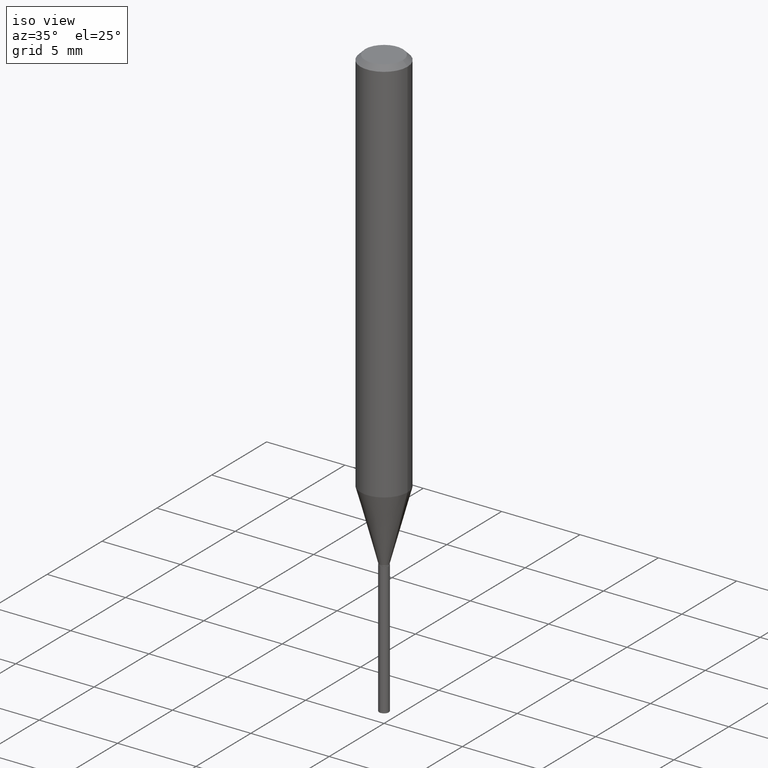
[diagram: clean part render]
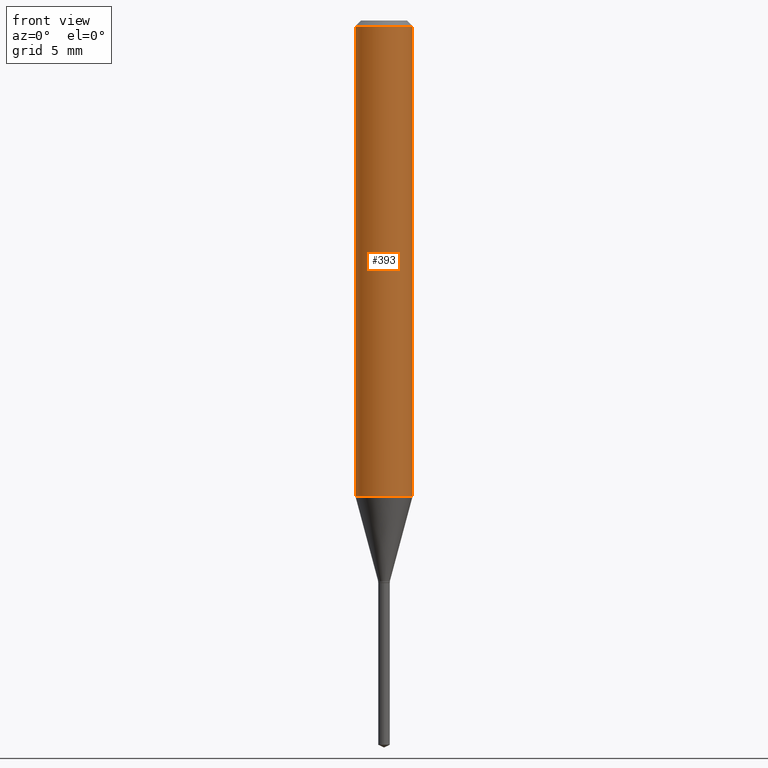
[diagram: tour spotlight — one face highlighted and labeled with its STEP entity id]
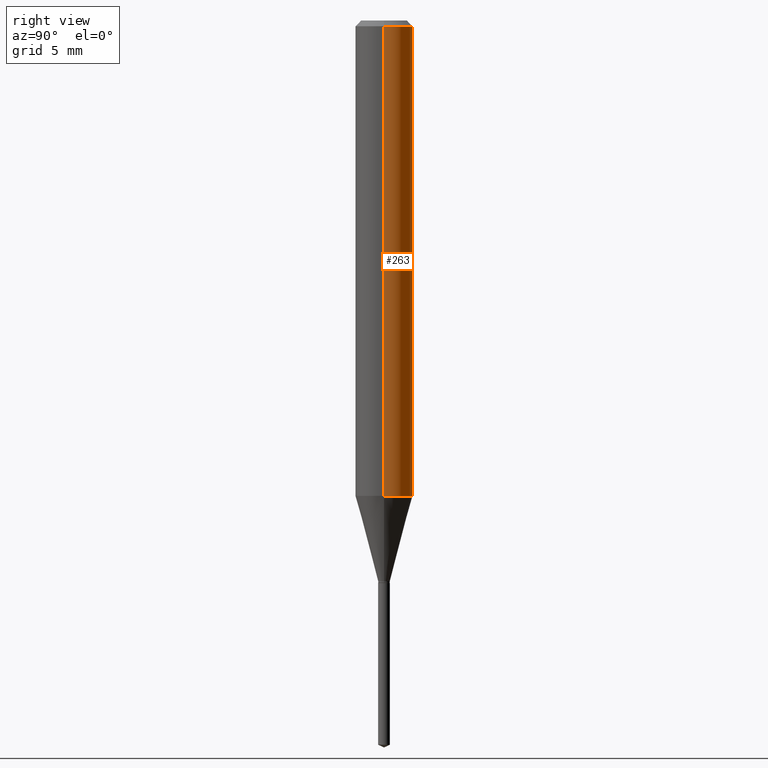
[diagram: tour spotlight — one face highlighted and labeled with its STEP entity id]
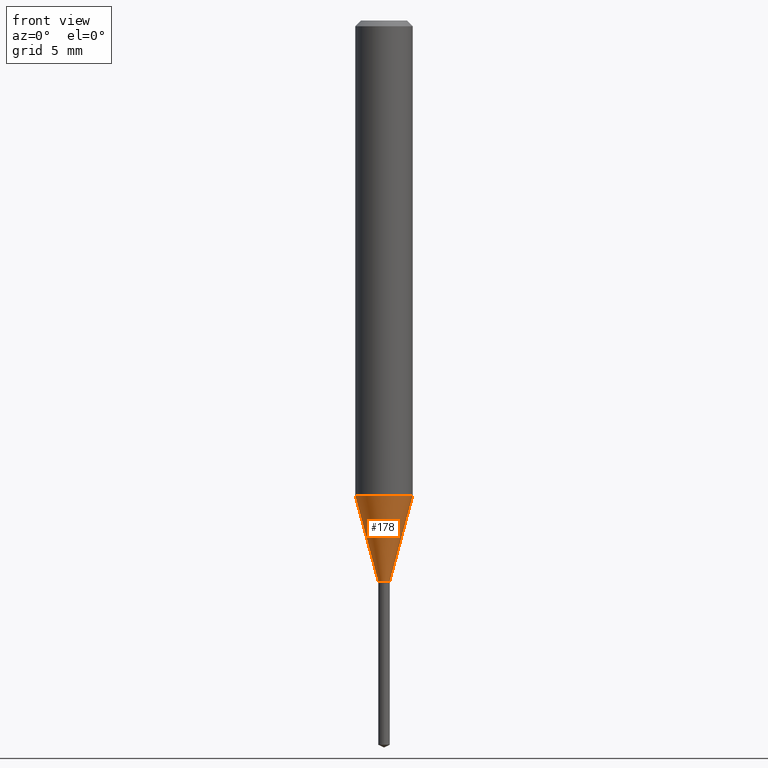
[diagram: tour spotlight — one face highlighted and labeled with its STEP entity id]
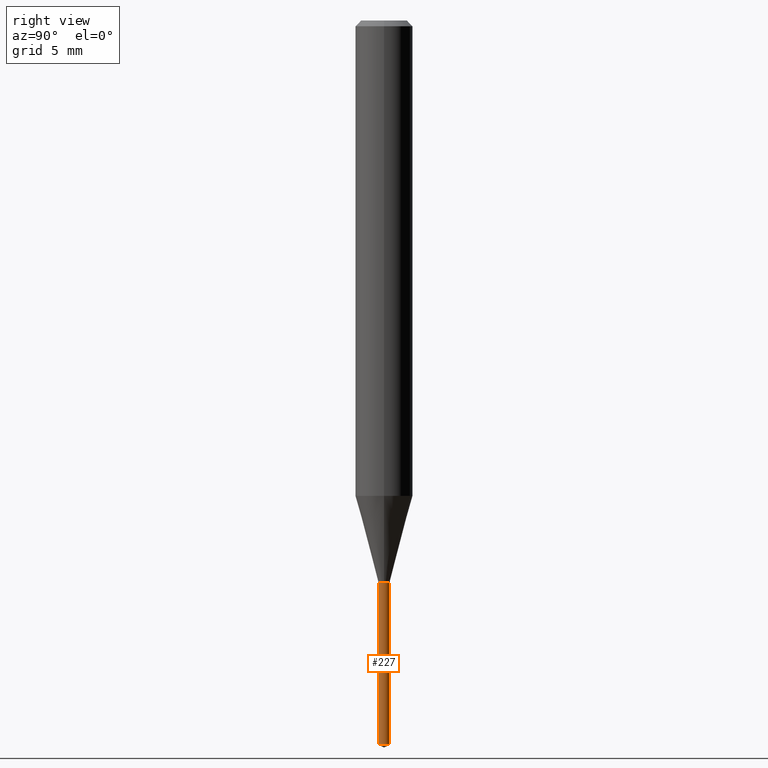
[diagram: tour spotlight — one face highlighted and labeled with its STEP entity id]
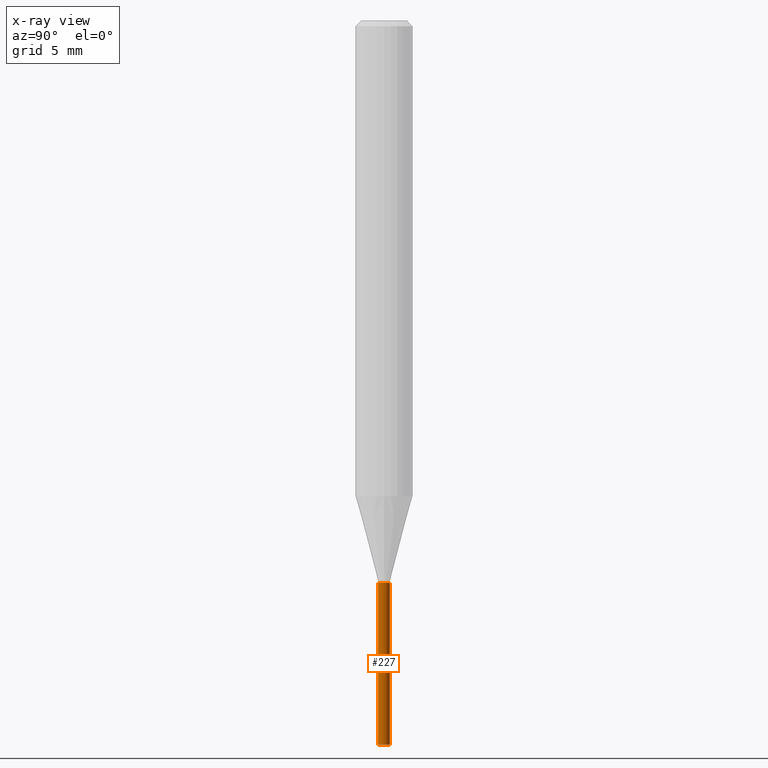
[diagram: x-ray of the same camera — body ghosted, this tour face saturated]
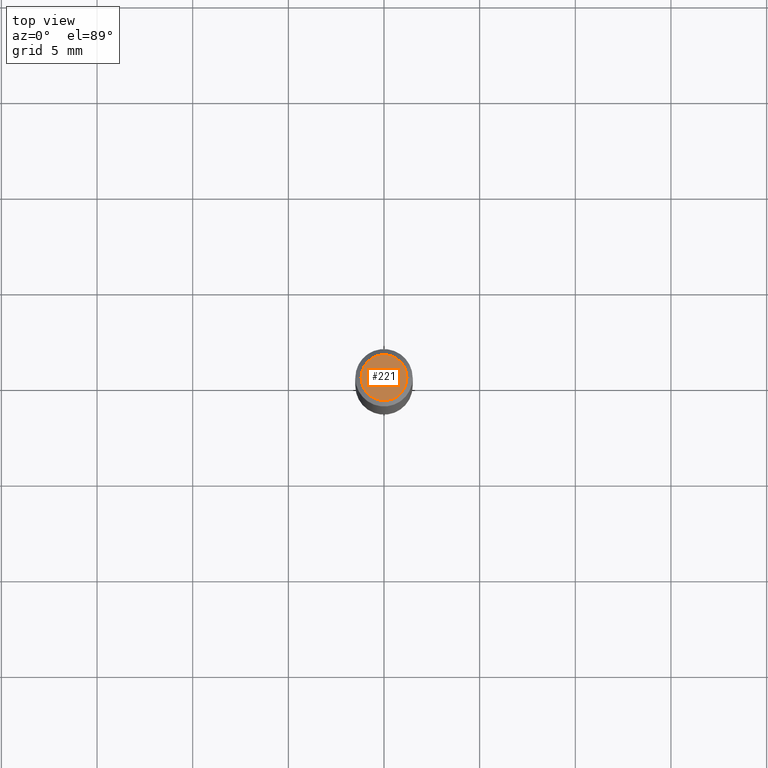
[diagram: tour spotlight — one face highlighted and labeled with its STEP entity id]
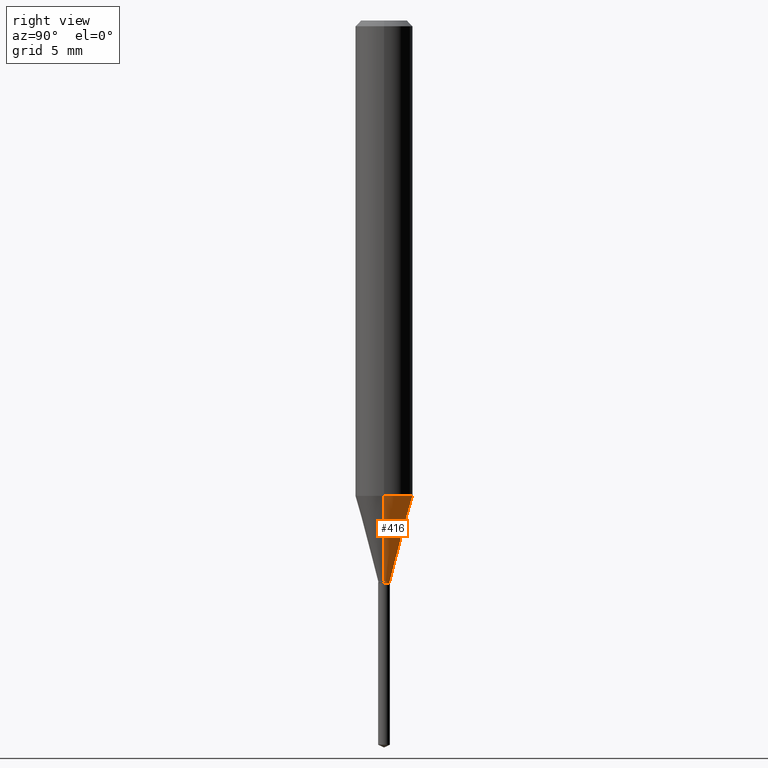
[diagram: tour spotlight — one face highlighted and labeled with its STEP entity id]
A machine part: a face-by-face anatomy tour. The part has 17 B-rep faces; the first image is the clean iso view, then the 6 largest visible faces are spotlighted one at a time (largest first), each with its STEP entity span.

Face 1 — front view, entity #393. In plain terms, the highlighted cylindrical surface (edge-blend (fillet) strip) has radius 1.4999 mm, axis along (-0, 0, 1).
Definition (entity closure, byte-faithful):
#7 = VERTEX_POINT ( 'NONE', #122 ) ;
#29 = CIRCLE ( 'NONE', #213, 0.05904999999999999832 ) ;
#39 = DIRECTION ( 'NONE',  ( -2.445468806185136597E-29, 3.491481338843145583E-15, 1.000000000000000000 ) ) ;
#69 = VERTEX_POINT ( 'NONE', #475 ) ;
#71 = VERTEX_POINT ( 'NONE', #359 ) ;
#72 = CARTESIAN_POINT ( 'NONE',  ( 2.888098660104664642E-31, -4.123439461173780879E-17, -0.01181000000000007565 ) ) ;
#89 = AXIS2_PLACEMENT_3D ( 'NONE', #298, #39, #191 ) ;
#95 = DIRECTION ( 'NONE',  ( -2.445468806185136877E-29, 3.491481338843145188E-15, 1.000000000000000000 ) ) ;
#101 = EDGE_CURVE ( 'NONE', #71, #461, #106, .T. ) ;
#106 = LINE ( 'NONE', #146, #159 ) ;
#110 = DIRECTION ( 'NONE',  ( -2.445468806185136597E-29, 3.491481338843145583E-15, 1.000000000000000000 ) ) ;
#122 = CARTESIAN_POINT ( 'NONE',  ( -0.05904999999999999832, -1.308912045510656317E-15, -0.01181000000000007565 ) ) ;
#125 = EDGE_CURVE ( 'NONE', #7, #461, #29, .T. ) ;
#146 = CARTESIAN_POINT ( 'NONE',  ( 0.05905000000000006771, -4.123439461173745257E-16, 2.879382386107503723E-30 ) ) ;
#151 = AXIS2_PLACEMENT_3D ( 'NONE', #292, #110, #188 ) ;
#159 = VECTOR ( 'NONE', #95, 39.37007874015748143 ) ;
#160 = EDGE_LOOP ( 'NONE', ( #437, #232, #180, #342 ) ) ;
#175 = LINE ( 'NONE', #318, #177 ) ;
#177 = VECTOR ( 'NONE', #288, 39.37007874015748143 ) ;
#180 = ORIENTED_EDGE ( 'NONE', *, *, #101, .T. ) ;
#188 = DIRECTION ( 'NONE',  ( 1.000000000000000000, -6.982962677686266711E-15, 4.876176775795936353E-29 ) ) ;
#190 = EDGE_CURVE ( 'NONE', #69, #7, #175, .T. ) ;
#191 = DIRECTION ( 'NONE',  ( 1.000000000000000000, -6.982962677686265133E-15, 0.000000000000000000 ) ) ;
#207 = CARTESIAN_POINT ( 'NONE',  ( 0.05904999999999999832, -4.535783407291118600E-16, -0.01181000000000007565 ) ) ;
#213 = AXIS2_PLACEMENT_3D ( 'NONE', #72, #323, #354 ) ;
#224 = EDGE_CURVE ( 'NONE', #69, #71, #297, .T. ) ;
#232 = ORIENTED_EDGE ( 'NONE', *, *, #224, .T. ) ;
#288 = DIRECTION ( 'NONE',  ( -2.445468806185136877E-29, 3.491481338843145188E-15, 1.000000000000000000 ) ) ;
#292 = CARTESIAN_POINT ( 'NONE',  ( 0.000000000000000000, 0.000000000000000000, 0.000000000000000000 ) ) ;
#293 = FACE_OUTER_BOUND ( 'NONE', #160, .T. ) ;
#297 = CIRCLE ( 'NONE', #89, 0.05905000000000013016 ) ;
#298 = CARTESIAN_POINT ( 'NONE',  ( 2.392419274614015052E-29, -3.415740667342255864E-15, -0.9783070095038842728 ) ) ;
#318 = CARTESIAN_POINT ( 'NONE',  ( -0.05905000000000006771, 4.195754854663396409E-16, -2.904631170795525045E-30 ) ) ;
#323 = DIRECTION ( 'NONE',  ( -2.445468806185136597E-29, 3.491481338843145583E-15, 1.000000000000000000 ) ) ;
#342 = ORIENTED_EDGE ( 'NONE', *, *, #125, .F. ) ;
#354 = DIRECTION ( 'NONE',  ( 1.000000000000000000, -6.982962677686266711E-15, 0.000000000000000000 ) ) ;
#359 = CARTESIAN_POINT ( 'NONE',  ( 0.05905000000000011628, -3.828084613459630390E-15, -0.9783070095038842728 ) ) ;
#370 = CYLINDRICAL_SURFACE ( 'NONE', #151, 0.05905000000000006771 ) ;
#393 = ADVANCED_FACE ( 'NONE', ( #293 ), #370, .T. ) ;
#437 = ORIENTED_EDGE ( 'NONE', *, *, #190, .F. ) ;
#461 = VERTEX_POINT ( 'NONE', #207 ) ;
#475 = CARTESIAN_POINT ( 'NONE',  ( -0.05905000000000011628, -2.996165181875915977E-15, -0.9783070095038842728 ) ) ;

Face 2 — right view, entity #263. In plain terms, the highlighted cylindrical surface (edge-blend (fillet) strip) has radius 1.4999 mm, axis along (-0, 0, 1).
Definition (entity closure, byte-faithful):
#7 = VERTEX_POINT ( 'NONE', #122 ) ;
#13 = AXIS2_PLACEMENT_3D ( 'NONE', #264, #444, #403 ) ;
#58 = DIRECTION ( 'NONE',  ( 1.000000000000000000, -6.982962677686266711E-15, 0.000000000000000000 ) ) ;
#69 = VERTEX_POINT ( 'NONE', #475 ) ;
#71 = VERTEX_POINT ( 'NONE', #359 ) ;
#73 = FACE_OUTER_BOUND ( 'NONE', #105, .T. ) ;
#95 = DIRECTION ( 'NONE',  ( -2.445468806185136877E-29, 3.491481338843145188E-15, 1.000000000000000000 ) ) ;
#98 = CARTESIAN_POINT ( 'NONE',  ( 2.392419274614015052E-29, -3.415740667342255864E-15, -0.9783070095038842728 ) ) ;
#101 = EDGE_CURVE ( 'NONE', #71, #461, #106, .T. ) ;
#105 = EDGE_LOOP ( 'NONE', ( #176, #147, #238, #425 ) ) ;
#106 = LINE ( 'NONE', #146, #159 ) ;
#122 = CARTESIAN_POINT ( 'NONE',  ( -0.05904999999999999832, -1.308912045510656317E-15, -0.01181000000000007565 ) ) ;
#146 = CARTESIAN_POINT ( 'NONE',  ( 0.05905000000000006771, -4.123439461173745257E-16, 2.879382386107503723E-30 ) ) ;
#147 = ORIENTED_EDGE ( 'NONE', *, *, #190, .T. ) ;
#148 = EDGE_CURVE ( 'NONE', #71, #69, #429, .T. ) ;
#154 = CYLINDRICAL_SURFACE ( 'NONE', #13, 0.05905000000000006771 ) ;
#159 = VECTOR ( 'NONE', #95, 39.37007874015748143 ) ;
#175 = LINE ( 'NONE', #318, #177 ) ;
#176 = ORIENTED_EDGE ( 'NONE', *, *, #148, .T. ) ;
#177 = VECTOR ( 'NONE', #288, 39.37007874015748143 ) ;
#190 = EDGE_CURVE ( 'NONE', #69, #7, #175, .T. ) ;
#207 = CARTESIAN_POINT ( 'NONE',  ( 0.05904999999999999832, -4.535783407291118600E-16, -0.01181000000000007565 ) ) ;
#216 = DIRECTION ( 'NONE',  ( -2.445468806185136597E-29, 3.491481338843145583E-15, 1.000000000000000000 ) ) ;
#236 = AXIS2_PLACEMENT_3D ( 'NONE', #285, #306, #58 ) ;
#238 = ORIENTED_EDGE ( 'NONE', *, *, #436, .F. ) ;
#263 = ADVANCED_FACE ( 'NONE', ( #73 ), #154, .T. ) ;
#264 = CARTESIAN_POINT ( 'NONE',  ( 0.000000000000000000, 0.000000000000000000, 0.000000000000000000 ) ) ;
#285 = CARTESIAN_POINT ( 'NONE',  ( 2.888098660104664642E-31, -4.123439461173780879E-17, -0.01181000000000007565 ) ) ;
#288 = DIRECTION ( 'NONE',  ( -2.445468806185136877E-29, 3.491481338843145188E-15, 1.000000000000000000 ) ) ;
#306 = DIRECTION ( 'NONE',  ( -2.445468806185136597E-29, 3.491481338843145583E-15, 1.000000000000000000 ) ) ;
#318 = CARTESIAN_POINT ( 'NONE',  ( -0.05905000000000006771, 4.195754854663396409E-16, -2.904631170795525045E-30 ) ) ;
#359 = CARTESIAN_POINT ( 'NONE',  ( 0.05905000000000011628, -3.828084613459630390E-15, -0.9783070095038842728 ) ) ;
#362 = DIRECTION ( 'NONE',  ( 1.000000000000000000, -6.982962677686265133E-15, 0.000000000000000000 ) ) ;
#403 = DIRECTION ( 'NONE',  ( 1.000000000000000000, -6.982962677686266711E-15, 4.876176775795936353E-29 ) ) ;
#425 = ORIENTED_EDGE ( 'NONE', *, *, #101, .F. ) ;
#429 = CIRCLE ( 'NONE', #449, 0.05905000000000013016 ) ;
#436 = EDGE_CURVE ( 'NONE', #461, #7, #440, .T. ) ;
#440 = CIRCLE ( 'NONE', #236, 0.05904999999999999832 ) ;
#444 = DIRECTION ( 'NONE',  ( -2.445468806185136597E-29, 3.491481338843145583E-15, 1.000000000000000000 ) ) ;
#449 = AXIS2_PLACEMENT_3D ( 'NONE', #98, #216, #362 ) ;
#461 = VERTEX_POINT ( 'NONE', #207 ) ;
#475 = CARTESIAN_POINT ( 'NONE',  ( -0.05905000000000011628, -2.996165181875915977E-15, -0.9783070095038842728 ) ) ;

Face 3 — front view, entity #178. In plain terms, the highlighted conical surface has half-angle 15 deg.
Definition (entity closure, byte-faithful):
#11 = VERTEX_POINT ( 'NONE', #165 ) ;
#39 = DIRECTION ( 'NONE',  ( -2.445468806185136597E-29, 3.491481338843145583E-15, 1.000000000000000000 ) ) ;
#40 = EDGE_CURVE ( 'NONE', #311, #71, #413, .T. ) ;
#43 = ORIENTED_EDGE ( 'NONE', *, *, #121, .T. ) ;
#48 = CONICAL_SURFACE ( 'NONE', #439, 0.01200000000000000025, 0.2617993877991500740 ) ;
#67 = FACE_OUTER_BOUND ( 'NONE', #386, .T. ) ;
#69 = VERTEX_POINT ( 'NONE', #475 ) ;
#71 = VERTEX_POINT ( 'NONE', #359 ) ;
#77 = CARTESIAN_POINT ( 'NONE',  ( 0.01200000000000000025, -4.112615869023340613E-15, -1.153899999999999926 ) ) ;
#86 = EDGE_CURVE ( 'NONE', #11, #69, #477, .T. ) ;
#89 = AXIS2_PLACEMENT_3D ( 'NONE', #298, #39, #191 ) ;
#102 = CARTESIAN_POINT ( 'NONE',  ( -0.01200000000000000025, -3.943555188599893977E-15, -1.153899999999999926 ) ) ;
#121 = EDGE_CURVE ( 'NONE', #11, #311, #379, .T. ) ;
#136 = AXIS2_PLACEMENT_3D ( 'NONE', #243, #471, #291 ) ;
#137 = VECTOR ( 'NONE', #349, 39.37007874015747433 ) ;
#165 = CARTESIAN_POINT ( 'NONE',  ( -0.01200000000000000025, -3.948966984675101032E-15, -1.153899999999999926 ) ) ;
#178 = ADVANCED_FACE ( 'NONE', ( #67 ), #48, .T. ) ;
#191 = DIRECTION ( 'NONE',  ( 1.000000000000000000, -6.982962677686265133E-15, 0.000000000000000000 ) ) ;
#202 = CARTESIAN_POINT ( 'NONE',  ( 0.01200000000000000025, -4.112615869023340613E-15, -1.153899999999999926 ) ) ;
#224 = EDGE_CURVE ( 'NONE', #69, #71, #297, .T. ) ;
#240 = ORIENTED_EDGE ( 'NONE', *, *, #224, .F. ) ;
#243 = CARTESIAN_POINT ( 'NONE',  ( 2.821826455457028920E-29, -4.028820316891105286E-15, -1.153899999999999926 ) ) ;
#247 = DIRECTION ( 'NONE',  ( -0.2588190451025213501, 5.211531920934551042E-15, 0.9659258262890682012 ) ) ;
#265 = ORIENTED_EDGE ( 'NONE', *, *, #86, .F. ) ;
#290 = CARTESIAN_POINT ( 'NONE',  ( 2.821826455457028920E-29, -4.028820316891105286E-15, -1.153899999999999926 ) ) ;
#291 = DIRECTION ( 'NONE',  ( 1.000000000000000000, -6.982962677686251722E-15, 0.000000000000000000 ) ) ;
#297 = CIRCLE ( 'NONE', #89, 0.05905000000000013016 ) ;
#298 = CARTESIAN_POINT ( 'NONE',  ( 2.392419274614015052E-29, -3.415740667342255864E-15, -0.9783070095038842728 ) ) ;
#311 = VERTEX_POINT ( 'NONE', #77 ) ;
#327 = VECTOR ( 'NONE', #247, 39.37007874015747433 ) ;
#349 = DIRECTION ( 'NONE',  ( 0.2588190451025213501, 1.565188264969621968E-15, 0.9659258262890682012 ) ) ;
#351 = ORIENTED_EDGE ( 'NONE', *, *, #40, .T. ) ;
#352 = DIRECTION ( 'NONE',  ( -2.445468806185136597E-29, 3.491481338843145583E-15, 1.000000000000000000 ) ) ;
#359 = CARTESIAN_POINT ( 'NONE',  ( 0.05905000000000011628, -3.828084613459630390E-15, -0.9783070095038842728 ) ) ;
#379 = CIRCLE ( 'NONE', #136, 0.01200000000000000025 ) ;
#386 = EDGE_LOOP ( 'NONE', ( #265, #43, #351, #240 ) ) ;
#413 = LINE ( 'NONE', #202, #137 ) ;
#439 = AXIS2_PLACEMENT_3D ( 'NONE', #290, #352, #469 ) ;
#469 = DIRECTION ( 'NONE',  ( 1.000000000000000000, -6.982962677686251722E-15, 0.000000000000000000 ) ) ;
#471 = DIRECTION ( 'NONE',  ( -2.445468806185136597E-29, 3.491481338843145583E-15, 1.000000000000000000 ) ) ;
#475 = CARTESIAN_POINT ( 'NONE',  ( -0.05905000000000011628, -2.996165181875915977E-15, -0.9783070095038842728 ) ) ;
#477 = LINE ( 'NONE', #102, #327 ) ;

Face 4 — right view, entity #227. An x-ray twin of the same camera follows (body ghosted, this face saturated) — the face is partly hidden behind the body. In plain terms, the highlighted cylindrical surface (edge-blend (fillet) strip) has radius 0.3048 mm, axis along (-0, 0, 1).
Definition (entity closure, byte-faithful):
#5 = VECTOR ( 'NONE', #272, 39.37007874015748143 ) ;
#8 = EDGE_CURVE ( 'NONE', #64, #270, #234, .T. ) ;
#16 = CARTESIAN_POINT ( 'NONE',  ( 2.830630143159295633E-29, -4.041389649710940900E-15, -1.157499999999999973 ) ) ;
#25 = LINE ( 'NONE', #392, #245 ) ;
#46 = EDGE_LOOP ( 'NONE', ( #360, #87, #453, #275 ) ) ;
#64 = VERTEX_POINT ( 'NONE', #432 ) ;
#87 = ORIENTED_EDGE ( 'NONE', *, *, #8, .T. ) ;
#92 = EDGE_CURVE ( 'NONE', #170, #166, #25, .T. ) ;
#100 = DIRECTION ( 'NONE',  ( -2.445457056059012515E-29, 3.491498165692530705E-15, 1.000000000000000000 ) ) ;
#144 = EDGE_CURVE ( 'NONE', #166, #270, #405, .T. ) ;
#166 = VERTEX_POINT ( 'NONE', #172 ) ;
#168 = AXIS2_PLACEMENT_3D ( 'NONE', #16, #388, #434 ) ;
#170 = VERTEX_POINT ( 'NONE', #250 ) ;
#172 = CARTESIAN_POINT ( 'NONE',  ( -8.379555213220687845E-17, -0.01200000000000404216, -1.157499999999999973 ) ) ;
#192 = FACE_OUTER_BOUND ( 'NONE', #46, .T. ) ;
#194 = CARTESIAN_POINT ( 'NONE',  ( 2.830630143159295633E-29, -4.041389649710940900E-15, -1.157499999999999973 ) ) ;
#227 = ADVANCED_FACE ( 'NONE', ( #192 ), #300, .T. ) ;
#234 = LINE ( 'NONE', #312, #5 ) ;
#245 = VECTOR ( 'NONE', #100, 39.37007874015748143 ) ;
#250 = CARTESIAN_POINT ( 'NONE',  ( -8.379555213219874332E-17, -0.01200000000000520442, -1.490504308102139852 ) ) ;
#254 = DIRECTION ( 'NONE',  ( -6.982962677686265922E-15, -1.000000000000000000, 0.000000000000000000 ) ) ;
#270 = VERTEX_POINT ( 'NONE', #374 ) ;
#272 = DIRECTION ( 'NONE',  ( -2.445457056059012515E-29, 3.491498165692530705E-15, 1.000000000000000000 ) ) ;
#275 = ORIENTED_EDGE ( 'NONE', *, *, #92, .F. ) ;
#300 = CYLINDRICAL_SURFACE ( 'NONE', #397, 0.01200000000000000025 ) ;
#312 = CARTESIAN_POINT ( 'NONE',  ( 8.526512829124031214E-17, 0.01199999999999595661, -1.157499999999999973 ) ) ;
#317 = CARTESIAN_POINT ( 'NONE',  ( 3.644977878105722837E-29, -5.204073580617272931E-15, -1.490504308102139852 ) ) ;
#328 = AXIS2_PLACEMENT_3D ( 'NONE', #317, #353, #391 ) ;
#353 = DIRECTION ( 'NONE',  ( -2.445457056059012515E-29, 3.491498165692530705E-15, 1.000000000000000000 ) ) ;
#360 = ORIENTED_EDGE ( 'NONE', *, *, #489, .T. ) ;
#365 = DIRECTION ( 'NONE',  ( -2.445457056059012515E-29, 3.491498165692530705E-15, 1.000000000000000000 ) ) ;
#374 = CARTESIAN_POINT ( 'NONE',  ( 8.526512829124852122E-17, 0.01199999999999595661, -1.157499999999999973 ) ) ;
#388 = DIRECTION ( 'NONE',  ( -2.445457056059012515E-29, 3.491498165692530705E-15, 1.000000000000000000 ) ) ;
#391 = DIRECTION ( 'NONE',  ( -6.982962677686265922E-15, -1.000000000000000000, 0.000000000000000000 ) ) ;
#392 = CARTESIAN_POINT ( 'NONE',  ( -8.379555213220687845E-17, -0.01200000000000404216, -1.157499999999999973 ) ) ;
#397 = AXIS2_PLACEMENT_3D ( 'NONE', #194, #365, #254 ) ;
#405 = CIRCLE ( 'NONE', #168, 0.01200000000000000025 ) ;
#418 = CIRCLE ( 'NONE', #328, 0.01200000000000000025 ) ;
#432 = CARTESIAN_POINT ( 'NONE',  ( 8.526512829124847192E-17, 0.01199999999999479781, -1.490504308102139852 ) ) ;
#434 = DIRECTION ( 'NONE',  ( -6.982962677686265922E-15, -1.000000000000000000, 0.000000000000000000 ) ) ;
#453 = ORIENTED_EDGE ( 'NONE', *, *, #144, .F. ) ;
#489 = EDGE_CURVE ( 'NONE', #170, #64, #418, .T. ) ;

Face 5 — top view, entity #221. In plain terms, the highlighted planar face has unit normal (0, -0, -1).
Definition (entity closure, byte-faithful):
#9 = DIRECTION ( 'NONE',  ( 1.000000000000000000, -6.982962677686266711E-15, 4.876185090822587894E-29 ) ) ;
#10 = EDGE_CURVE ( 'NONE', #241, #96, #406, .T. ) ;
#21 = PLANE ( 'NONE',  #22 ) ;
#22 = AXIS2_PLACEMENT_3D ( 'NONE', #179, #149, #332 ) ;
#41 = EDGE_LOOP ( 'NONE', ( #314, #251 ) ) ;
#66 = FACE_OUTER_BOUND ( 'NONE', #41, .T. ) ;
#90 = CIRCLE ( 'NONE', #127, 0.04724000000000000421 ) ;
#91 = DIRECTION ( 'NONE',  ( -2.445468806185136597E-29, 3.491481338843145583E-15, 1.000000000000000000 ) ) ;
#96 = VERTEX_POINT ( 'NONE', #321 ) ;
#107 = AXIS2_PLACEMENT_3D ( 'NONE', #307, #91, #9 ) ;
#127 = AXIS2_PLACEMENT_3D ( 'NONE', #334, #479, #219 ) ;
#149 = DIRECTION ( 'NONE',  ( 2.438088387897960049E-29, -3.491481338843145188E-15, -1.000000000000000000 ) ) ;
#179 = CARTESIAN_POINT ( 'NONE',  ( 4.132873053354867254E-48, -5.900647395337818946E-34, -1.690012582823346072E-19 ) ) ;
#219 = DIRECTION ( 'NONE',  ( 1.000000000000000000, -6.982962677686266711E-15, 4.876185090822587894E-29 ) ) ;
#221 = ADVANCED_FACE ( 'NONE', ( #66 ), #21, .F. ) ;
#241 = VERTEX_POINT ( 'NONE', #295 ) ;
#251 = ORIENTED_EDGE ( 'NONE', *, *, #10, .T. ) ;
#295 = CARTESIAN_POINT ( 'NONE',  ( 0.04724000000000000421, -3.852183633974369345E-16, -3.380025165621689721E-19 ) ) ;
#307 = CARTESIAN_POINT ( 'NONE',  ( 8.265746106709734507E-48, -1.180129479067563789E-33, -3.380025165646692144E-19 ) ) ;
#314 = ORIENTED_EDGE ( 'NONE', *, *, #333, .T. ) ;
#321 = CARTESIAN_POINT ( 'NONE',  ( -0.04724000000000000421, 3.504923541997677355E-16, -3.380025165670481712E-19 ) ) ;
#332 = DIRECTION ( 'NONE',  ( -1.000000000000000000, 6.982962677686265922E-15, -4.876176775795935793E-29 ) ) ;
#333 = EDGE_CURVE ( 'NONE', #96, #241, #90, .T. ) ;
#334 = CARTESIAN_POINT ( 'NONE',  ( 8.265746106709734507E-48, -1.180129479067563789E-33, -3.380025165646692144E-19 ) ) ;
#406 = CIRCLE ( 'NONE', #107, 0.04724000000000000421 ) ;
#479 = DIRECTION ( 'NONE',  ( -2.445468806185136597E-29, 3.491481338843145583E-15, 1.000000000000000000 ) ) ;

Face 6 — right view, entity #416. In plain terms, the highlighted conical surface has half-angle 15 deg.
Definition (entity closure, byte-faithful):
#11 = VERTEX_POINT ( 'NONE', #165 ) ;
#31 = DIRECTION ( 'NONE',  ( 1.000000000000000000, -6.982962677686251722E-15, 0.000000000000000000 ) ) ;
#34 = CARTESIAN_POINT ( 'NONE',  ( 2.821826455457028920E-29, -4.028820316891105286E-15, -1.153899999999999926 ) ) ;
#40 = EDGE_CURVE ( 'NONE', #311, #71, #413, .T. ) ;
#69 = VERTEX_POINT ( 'NONE', #475 ) ;
#71 = VERTEX_POINT ( 'NONE', #359 ) ;
#77 = CARTESIAN_POINT ( 'NONE',  ( 0.01200000000000000025, -4.112615869023340613E-15, -1.153899999999999926 ) ) ;
#80 = DIRECTION ( 'NONE',  ( -2.445468806185136597E-29, 3.491481338843145583E-15, 1.000000000000000000 ) ) ;
#86 = EDGE_CURVE ( 'NONE', #11, #69, #477, .T. ) ;
#98 = CARTESIAN_POINT ( 'NONE',  ( 2.392419274614015052E-29, -3.415740667342255864E-15, -0.9783070095038842728 ) ) ;
#102 = CARTESIAN_POINT ( 'NONE',  ( -0.01200000000000000025, -3.943555188599893977E-15, -1.153899999999999926 ) ) ;
#112 = DIRECTION ( 'NONE',  ( -2.445468806185136597E-29, 3.491481338843145583E-15, 1.000000000000000000 ) ) ;
#132 = ORIENTED_EDGE ( 'NONE', *, *, #148, .F. ) ;
#137 = VECTOR ( 'NONE', #349, 39.37007874015747433 ) ;
#141 = CONICAL_SURFACE ( 'NONE', #430, 0.01200000000000000025, 0.2617993877991500740 ) ;
#148 = EDGE_CURVE ( 'NONE', #71, #69, #429, .T. ) ;
#165 = CARTESIAN_POINT ( 'NONE',  ( -0.01200000000000000025, -3.948966984675101032E-15, -1.153899999999999926 ) ) ;
#202 = CARTESIAN_POINT ( 'NONE',  ( 0.01200000000000000025, -4.112615869023340613E-15, -1.153899999999999926 ) ) ;
#205 = AXIS2_PLACEMENT_3D ( 'NONE', #34, #80, #31 ) ;
#216 = DIRECTION ( 'NONE',  ( -2.445468806185136597E-29, 3.491481338843145583E-15, 1.000000000000000000 ) ) ;
#247 = DIRECTION ( 'NONE',  ( -0.2588190451025213501, 5.211531920934551042E-15, 0.9659258262890682012 ) ) ;
#259 = DIRECTION ( 'NONE',  ( 1.000000000000000000, -6.982962677686251722E-15, 0.000000000000000000 ) ) ;
#271 = ORIENTED_EDGE ( 'NONE', *, *, #86, .T. ) ;
#287 = CIRCLE ( 'NONE', #205, 0.01200000000000000025 ) ;
#311 = VERTEX_POINT ( 'NONE', #77 ) ;
#327 = VECTOR ( 'NONE', #247, 39.37007874015747433 ) ;
#330 = FACE_OUTER_BOUND ( 'NONE', #337, .T. ) ;
#337 = EDGE_LOOP ( 'NONE', ( #442, #271, #132, #377 ) ) ;
#349 = DIRECTION ( 'NONE',  ( 0.2588190451025213501, 1.565188264969621968E-15, 0.9659258262890682012 ) ) ;
#359 = CARTESIAN_POINT ( 'NONE',  ( 0.05905000000000011628, -3.828084613459630390E-15, -0.9783070095038842728 ) ) ;
#362 = DIRECTION ( 'NONE',  ( 1.000000000000000000, -6.982962677686265133E-15, 0.000000000000000000 ) ) ;
#363 = EDGE_CURVE ( 'NONE', #311, #11, #287, .T. ) ;
#377 = ORIENTED_EDGE ( 'NONE', *, *, #40, .F. ) ;
#413 = LINE ( 'NONE', #202, #137 ) ;
#416 = ADVANCED_FACE ( 'NONE', ( #330 ), #141, .T. ) ;
#429 = CIRCLE ( 'NONE', #449, 0.05905000000000013016 ) ;
#430 = AXIS2_PLACEMENT_3D ( 'NONE', #483, #112, #259 ) ;
#442 = ORIENTED_EDGE ( 'NONE', *, *, #363, .T. ) ;
#449 = AXIS2_PLACEMENT_3D ( 'NONE', #98, #216, #362 ) ;
#475 = CARTESIAN_POINT ( 'NONE',  ( -0.05905000000000011628, -2.996165181875915977E-15, -0.9783070095038842728 ) ) ;
#477 = LINE ( 'NONE', #102, #327 ) ;
#483 = CARTESIAN_POINT ( 'NONE',  ( 2.821826455457028920E-29, -4.028820316891105286E-15, -1.153899999999999926 ) ) ;